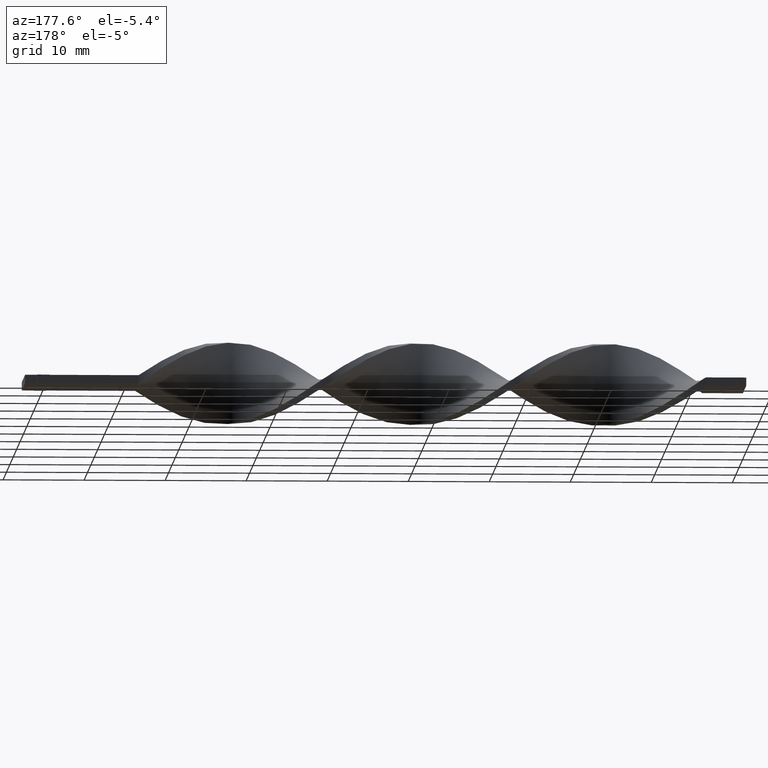
[diagram: clean part render]
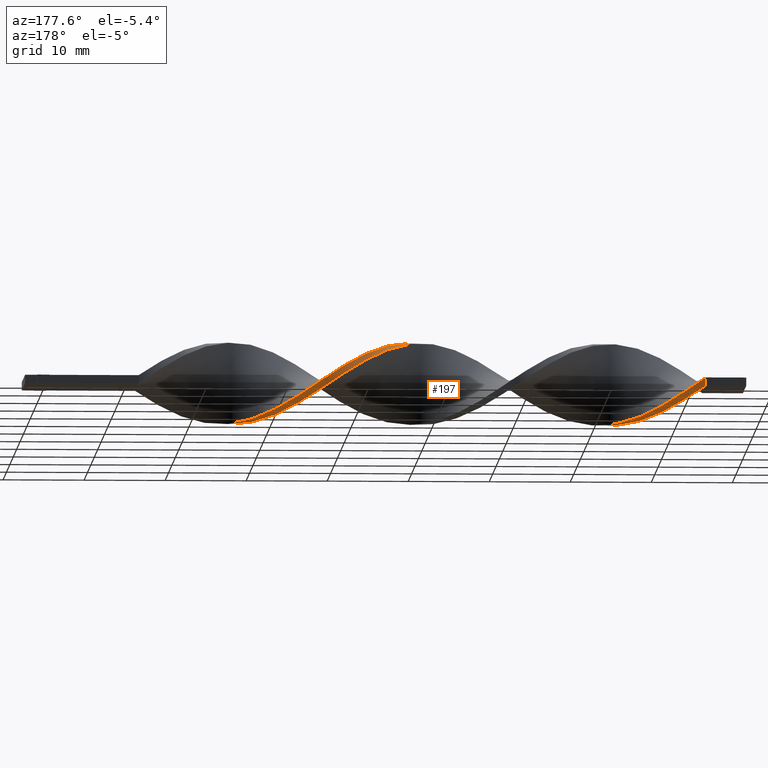
[diagram: same view with one face highlighted and labeled with its STEP entity id]
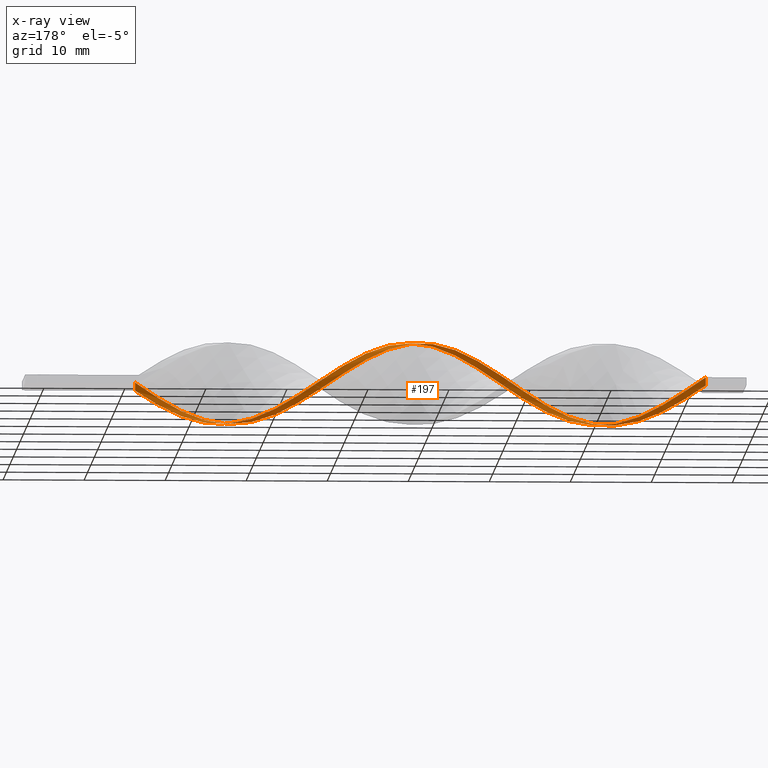
[diagram: x-ray of the same camera — body ghosted, the highlighted face saturated]
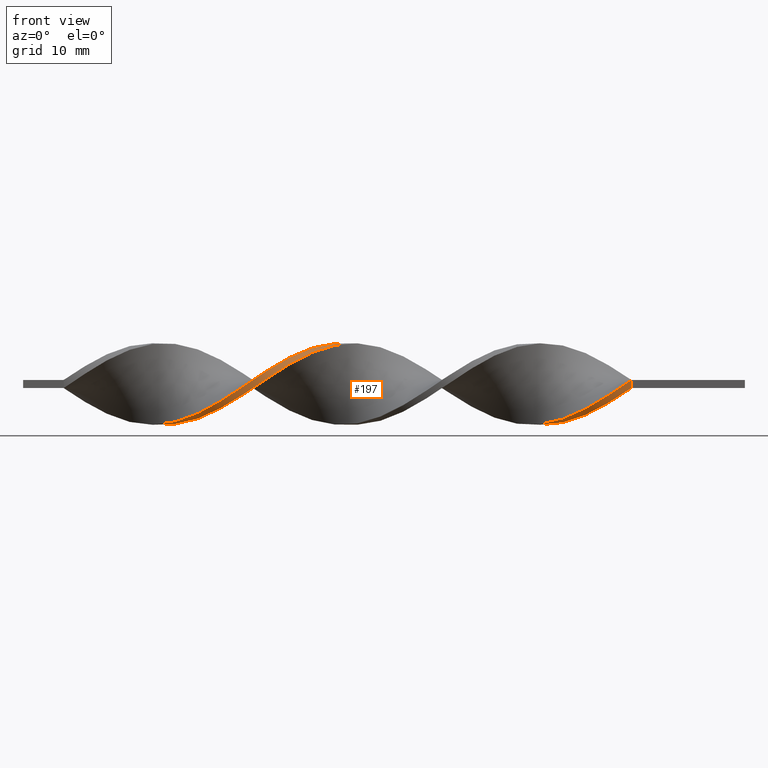
[diagram: same view with one face highlighted and labeled with its STEP entity id]
A machine part, auxiliary view. The second image highlights one B-rep face of the part: STEP entity #197.
The next image is the same camera in x-ray: the body ghosted, the highlighted face saturated — about 2% of this face is hidden behind the body in this view.
A second angle (front view) of the same face is appended — the face is thin or edge-on in the first view.
In plain terms, the highlighted face is a freeform B-spline surface patch.
Its self-contained STEP definition (entity closure, byte-faithful):
#2 = CARTESIAN_POINT ( 'NONE',  ( -71.43589743589743080, -1.099037838325645167, -4.903276030362606619 ) ) ;
#3 = CARTESIAN_POINT ( 'NONE',  ( -69.64102564102564941, -1.305516313869973466, -4.852383656948340729 ) ) ;
#10 = CARTESIAN_POINT ( 'NONE',  ( -62.46153846153845990, -4.974366919274039844, -0.7111074127247621890 ) ) ;
#15 = CARTESIAN_POINT ( 'NONE',  ( -49.89743589743589069, -1.099037838325640948, 4.903276030362608395 ) ) ;
#28 = CARTESIAN_POINT ( 'NONE',  ( -72.33333333333332860, -0.5036723384328442021, -5.036723384328412934 ) ) ;
#31 = CARTESIAN_POINT ( 'NONE',  ( -15.79487179487179205, -4.735051254986482050, -1.682049230150814312 ) ) ;
#38 = CARTESIAN_POINT ( 'NONE',  ( -70.53846153846153300, -0.7163302668880203727, -5.010902036907448398 ) ) ;
#40 = CARTESIAN_POINT ( 'NONE',  ( -73.23076923076924061, 0.1063289642275847546, -5.023812710617930222 ) ) ;
#50 = CARTESIAN_POINT ( 'NONE',  ( -63.35897435897435770, -4.530813501584094460, -2.256988544190325907 ) ) ;
#52 = CARTESIAN_POINT ( 'NONE',  ( -43.61538461538461320, 3.716969558312884114, 3.436045048790596024 ) ) ;
#55 = CARTESIAN_POINT ( 'NONE',  ( -13.99999999999999645, -5.000000000000000888, -0.5000000000000000000 ) ) ;
#58 = CARTESIAN_POINT ( 'NONE',  ( -48.10256410256410220, 0.1063289642275882241, 5.023812710617930222 ) ) ;
#64 = CARTESIAN_POINT ( 'NONE',  ( -81.30769230769233502, 4.888022846936943111, -1.315104909338223660 ) ) ;
#75 = CARTESIAN_POINT ( 'NONE',  ( -46.30769230769230660, 1.305516313869969025, 4.852383656948340729 ) ) ;
#80 = CARTESIAN_POINT ( 'NONE',  ( -39.12820512820512420, 4.974366919274035403, 0.7111074127247607457 ) ) ;
#81 = CARTESIAN_POINT ( 'NONE',  ( -25.66666666666666785, 0.5036723384328388731, -5.036723384328412934 ) ) ;
#85 = CARTESIAN_POINT ( 'NONE',  ( -45.41025641025640880, 1.894702360851922895, 4.693865276989232171 ) ) ;
#100 = CARTESIAN_POINT ( 'NONE',  ( -58.87179487179486870, -4.974366919274039844, 0.7111074127247669630 ) ) ;
#102 = EDGE_CURVE ( 'NONE', #883, #1191, #1312, .T. ) ;
#104 = CARTESIAN_POINT ( 'NONE',  ( -26.56410256410256210, 0.1063289642275847546, -5.023812710617930222 ) ) ;
#108 = CARTESIAN_POINT ( 'NONE',  ( -52.58974358974359120, -2.786661774892327248, 4.225728863414810021 ) ) ;
#116 = CARTESIAN_POINT ( 'NONE',  ( -72.33333333333332860, 0.5036723384328388731, -5.036723384328412934 ) ) ;
#121 = CARTESIAN_POINT ( 'NONE',  ( -31.94871794871794535, 3.410992411735102703, -3.689868665289526284 ) ) ;
#125 = CARTESIAN_POINT ( 'NONE',  ( -57.07692307692307310, -4.659641714287933389, 1.880887847392240575 ) ) ;
#132 = CARTESIAN_POINT ( 'NONE',  ( -59.76923076923077360, -4.939289008388870528, 1.107109916111305159 ) ) ;
#137 = EDGE_CURVE ( 'NONE', #857, #498, #843, .T. ) ;
#139 = CARTESIAN_POINT ( 'NONE',  ( -24.76923076923076650, -0.1063289642275912633, -5.023812710617930222 ) ) ;
#142 = CARTESIAN_POINT ( 'NONE',  ( -58.87179487179486870, -4.735051254986480274, 1.682049230150818753 ) ) ;
#150 = CARTESIAN_POINT ( 'NONE',  ( -64.25641025641024839, -4.659641714287935166, -1.880887847392236800 ) ) ;
#151 = CARTESIAN_POINT ( 'NONE',  ( -83.10256410256410220, 5.060710991611126808, -0.1071099161113047288 ) ) ;
#155 = CARTESIAN_POINT ( 'NONE',  ( -66.94871794871794179, -2.962961240565979981, -4.104038128678483055 ) ) ;
#156 = CARTESIAN_POINT ( 'NONE',  ( -82.20512820512820440, 4.735051254986476721, -1.682049230150816088 ) ) ;
#161 = CARTESIAN_POINT ( 'NONE',  ( -74.12820512820510999, 0.7163302668880149326, -5.010902036907446622 ) ) ;
#166 = CARTESIAN_POINT ( 'NONE',  ( -23.87179487179487580, -1.694403338218445576, -4.769828676396802081 ) ) ;
#169 = CARTESIAN_POINT ( 'NONE',  ( -74.12820512820512420, 0.7163302668880148216, -5.010902036907447510 ) ) ;
#170 = CARTESIAN_POINT ( 'NONE',  ( -77.71794871794874382, 2.962961240565973320, -4.104038128678484831 ) ) ;
#185 = CARTESIAN_POINT ( 'NONE',  ( -39.12820512820512420, 4.974366919274035403, 0.7111074127247607457 ) ) ;
#194 = EDGE_LOOP ( 'NONE', ( #969, #1398, #904, #1077 ) ) ;
#195 = CARTESIAN_POINT ( 'NONE',  ( -41.82051282051281760, 3.859023582904235194, 3.275699201900567292 ) ) ;
#197 = ADVANCED_FACE ( 'NONE', ( #1264 ), #744, .T. ) ;
#199 = CARTESIAN_POINT ( 'NONE',  ( -24.76923076923076650, -0.1063289642275912633, -5.023812710617930222 ) ) ;
#202 = CARTESIAN_POINT ( 'NONE',  ( -50.79487179487178850, -1.694403338218443578, 4.769828676396803857 ) ) ;
#206 = CARTESIAN_POINT ( 'NONE',  ( -34.64102564102564230, 4.888022846936943111, -1.315104909338223660 ) ) ;
#213 = CARTESIAN_POINT ( 'NONE',  ( -78.61538461538461320, 4.074115069975897896, -2.941357917118425647 ) ) ;
#222 = CARTESIAN_POINT ( 'NONE',  ( -73.23076923076924061, 1.099037838325638727, -4.903276030362606619 ) ) ;
#229 = CARTESIAN_POINT ( 'NONE',  ( -46.30769230769230660, 1.305516313869969025, 4.852383656948340729 ) ) ;
#236 = CARTESIAN_POINT ( 'NONE',  ( -65.15384615384614619, -3.859023582904239191, -3.275699201900567292 ) ) ;
#239 = CARTESIAN_POINT ( 'NONE',  ( -17.58974358974358765, -4.194918542244167270, -2.766343873045446600 ) ) ;
#243 = CARTESIAN_POINT ( 'NONE',  ( -49.00000000000000711, 0.5036723384328398723, 5.036723384328412045 ) ) ;
#244 = CARTESIAN_POINT ( 'NONE',  ( -67.84615384615385381, -2.428831800708953104, -4.398951702833858945 ) ) ;
#248 = CARTESIAN_POINT ( 'NONE',  ( -23.87179487179487580, -0.7163302668880203727, -5.010902036907448398 ) ) ;
#257 = CARTESIAN_POINT ( 'NONE',  ( -54.38461538461538680, -2.962961240565975984, 4.104038128678485720 ) ) ;
#271 = CARTESIAN_POINT ( 'NONE',  ( -47.20512820512820440, 1.694403338218440691, 4.769828676396802969 ) ) ;
#275 = CARTESIAN_POINT ( 'NONE',  ( -20.28205128205128460, -3.716969558312888555, -3.436045048790597356 ) ) ;
#278 = CARTESIAN_POINT ( 'NONE',  ( -47.20512820512820440, 1.694403338218440691, 4.769828676396802969 ) ) ;
#281 = CARTESIAN_POINT ( 'NONE',  ( -71.43589743589743080, -1.099037838325645167, -4.903276030362606619 ) ) ;
#288 = CARTESIAN_POINT ( 'NONE',  ( -53.48717948717948900, -2.428831800708951327, 4.398951702833859834 ) ) ;
#294 = CARTESIAN_POINT ( 'NONE',  ( -59.76923076923076650, -4.939289008388870528, 1.107109916111305381 ) ) ;
#298 = CARTESIAN_POINT ( 'NONE',  ( -13.99999999999999645, -5.000000000000000888, 0.5000000000000000000 ) ) ;
#301 = CARTESIAN_POINT ( 'NONE',  ( -19.38461538461538325, -4.074115069975905001, -2.941357917118423870 ) ) ;
#304 = CARTESIAN_POINT ( 'NONE',  ( -73.23076923076924061, 1.099037838325638727, -4.903276030362606619 ) ) ;
#305 = CARTESIAN_POINT ( 'NONE',  ( -15.79487179487179205, -4.974366919274039844, -0.7111074127247621890 ) ) ;
#311 = CARTESIAN_POINT ( 'NONE',  ( -21.17948717948717885, -2.428831800708953104, -4.398951702833858945 ) ) ;
#314 = CARTESIAN_POINT ( 'NONE',  ( -36.43589743589743790, 5.060710991611126808, -0.1071099161113047288 ) ) ;
#322 = CARTESIAN_POINT ( 'NONE',  ( -40.02564102564102200, 4.530813501584090019, 2.256988544190324575 ) ) ;
#328 = CARTESIAN_POINT ( 'NONE',  ( -16.69230769230769340, -4.530813501584094460, -2.256988544190326351 ) ) ;
#342 = CARTESIAN_POINT ( 'NONE',  ( -33.74358974358974450, 4.659641714287928949, -1.880887847392237688 ) ) ;
#343 = EDGE_CURVE ( 'NONE', #883, #498, #1239, .T. ) ;
#350 = CARTESIAN_POINT ( 'NONE',  ( -80.41025641025640880, 4.659641714287928949, -1.880887847392237688 ) ) ;
#352 = CARTESIAN_POINT ( 'NONE',  ( -67.84615384615385381, -3.251815666602609234, -3.830886956102702356 ) ) ;
#355 = CARTESIAN_POINT ( 'NONE',  ( -60.66666666666666430, -5.000000000000000888, -0.5000000000000000000 ) ) ;
#359 = CARTESIAN_POINT ( 'NONE',  ( -70.53846153846153300, -0.7163302668880202617, -5.010902036907447510 ) ) ;
#364 = CARTESIAN_POINT ( 'NONE',  ( -16.69230769230769695, -4.530813501584094460, -2.256988544190325907 ) ) ;
#367 = CARTESIAN_POINT ( 'NONE',  ( -51.69230769230769340, -2.240532556555387078, 4.497778769905804275 ) ) ;
#371 = CARTESIAN_POINT ( 'NONE',  ( -20.28205128205128460, -2.962961240565979981, -4.104038128678483055 ) ) ;
#373 = CARTESIAN_POINT ( 'NONE',  ( -61.56410256410256920, -5.060710991611132137, -0.1071099161113024806 ) ) ;
#379 = CARTESIAN_POINT ( 'NONE',  ( -75.92307692307693401, 1.894702360851919565, -4.693865276989233948 ) ) ;
#381 = CARTESIAN_POINT ( 'NONE',  ( -57.07692307692307310, -4.194918542244165494, 2.766343873045449708 ) ) ;
#388 = CARTESIAN_POINT ( 'NONE',  ( -70.53846153846153300, -1.694403338218445576, -4.769828676396802081 ) ) ;
#391 = CARTESIAN_POINT ( 'NONE',  ( -67.84615384615385381, -2.428831800708953104, -4.398951702833858945 ) ) ;
#399 = CARTESIAN_POINT ( 'NONE',  ( -62.46153846153845990, -4.735051254986482050, -1.682049230150814312 ) ) ;
#401 = CARTESIAN_POINT ( 'NONE',  ( -46.30769230769230660, 2.240532556555383970, 4.497778769905804275 ) ) ;
#402 = CARTESIAN_POINT ( 'NONE',  ( -48.10256410256410220, 1.099037838325642280, 4.903276030362606619 ) ) ;
#421 = CARTESIAN_POINT ( 'NONE',  ( -20.28205128205128460, -3.716969558312888555, -3.436045048790597356 ) ) ;
#422 = CARTESIAN_POINT ( 'NONE',  ( -38.23076923076922640, 4.939289008388865199, 1.107109916111301162 ) ) ;
#425 = CARTESIAN_POINT ( 'NONE',  ( -44.51282051282051100, 2.428831800708947775, 4.398951702833858945 ) ) ;
#431 = CARTESIAN_POINT ( 'NONE',  ( -33.74358974358974450, 4.194918542244161053, -2.766343873045447488 ) ) ;
#432 = CARTESIAN_POINT ( 'NONE',  ( -17.58974358974358765, -4.194918542244167270, -2.766343873045446600 ) ) ;
#440 = CARTESIAN_POINT ( 'NONE',  ( -79.51282051282051100, 4.431260581638915674, -2.446670785446252161 ) ) ;
#441 = CARTESIAN_POINT ( 'NONE',  ( -24.76923076923076650, -1.099037838325645167, -4.903276030362606619 ) ) ;
#442 = CARTESIAN_POINT ( 'NONE',  ( -27.46153846153846345, 1.694403338218440247, -4.769828676396802969 ) ) ;
#444 = CARTESIAN_POINT ( 'NONE',  ( -40.92307692307691980, 4.659641714287929837, 1.880887847392236800 ) ) ;
#451 = CARTESIAN_POINT ( 'NONE',  ( -41.82051282051281760, 4.431260581638917451, 2.446670785446250829 ) ) ;
#452 = CARTESIAN_POINT ( 'NONE',  ( -29.25641025641025905, 2.786661774892324583, -4.225728863414808245 ) ) ;
#484 = CARTESIAN_POINT ( 'NONE',  ( -81.30769230769232081, 4.530813501584088243, -2.256988544190327683 ) ) ;
#488 = CARTESIAN_POINT ( 'NONE',  ( -53.48717948717948900, -3.251815666602607457, 3.830886956102703689 ) ) ;
#493 = CARTESIAN_POINT ( 'NONE',  ( -33.74358974358974450, 4.194918542244161053, -2.766343873045447488 ) ) ;
#495 = CARTESIAN_POINT ( 'NONE',  ( -76.82051282051281760, 3.251815666602603461, -3.830886956102702356 ) ) ;
#498 = VERTEX_POINT ( 'NONE', #1026 ) ;
#499 = CARTESIAN_POINT ( 'NONE',  ( -50.79487179487178850, -0.7163302668880178192, 5.010902036907447510 ) ) ;
#502 = CARTESIAN_POINT ( 'NONE',  ( -36.43589743589743790, 4.939289008388865199, -1.107109916111304937 ) ) ;
#503 = CARTESIAN_POINT ( 'NONE',  ( -19.38461538461538325, -3.410992411735109364, -3.689868665289524952 ) ) ;
#506 = CARTESIAN_POINT ( 'NONE',  ( -66.05128205128204399, -4.074115069975905001, -2.941357917118423870 ) ) ;
#508 = CARTESIAN_POINT ( 'NONE',  ( -68.74358974358973740, -1.894702360851925560, -4.693865276989233948 ) ) ;
#521 = CARTESIAN_POINT ( 'NONE',  ( -13.99999999999999645, -5.000000000000000888, -0.5000000000000000000 ) ) ;
#528 = CARTESIAN_POINT ( 'NONE',  ( -71.43589743589743080, -0.1063289642275912633, -5.023812710617930222 ) ) ;
#537 = CARTESIAN_POINT ( 'NONE',  ( -84.00000000000000000, 4.999999999999995559, -0.5000000000000006661 ) ) ;
#539 = CARTESIAN_POINT ( 'NONE',  ( -79.51282051282051100, 3.859023582904232974, -3.275699201900567292 ) ) ;
#543 = CARTESIAN_POINT ( 'NONE',  ( -56.17948717948717530, -3.859023582904238303, 3.275699201900567736 ) ) ;
#545 = CARTESIAN_POINT ( 'NONE',  ( -19.38461538461538325, -4.074115069975905001, -2.941357917118423870 ) ) ;
#547 = CARTESIAN_POINT ( 'NONE',  ( -64.25641025641024839, -4.194918542244167270, -2.766343873045446600 ) ) ;
#549 = CARTESIAN_POINT ( 'NONE',  ( -44.51282051282051100, 3.251815666602604349, 3.830886956102702356 ) ) ;
#552 = CARTESIAN_POINT ( 'NONE',  ( -58.87179487179486870, -4.735051254986480274, 1.682049230150818753 ) ) ;
#553 = CARTESIAN_POINT ( 'NONE',  ( -15.79487179487179205, -4.735051254986482050, -1.682049230150814312 ) ) ;
#559 = CARTESIAN_POINT ( 'NONE',  ( -31.94871794871794535, 3.410992411735102703, -3.689868665289526284 ) ) ;
#562 = CARTESIAN_POINT ( 'NONE',  ( -77.71794871794872961, 3.716969558312881450, -3.436045048790598244 ) ) ;
#563 = CARTESIAN_POINT ( 'NONE',  ( -22.07692307692308020, -2.786661774892330357, -4.225728863414808245 ) ) ;
#568 = CARTESIAN_POINT ( 'NONE',  ( -17.58974358974358765, -4.659641714287935166, -1.880887847392236800 ) ) ;
#570 = CARTESIAN_POINT ( 'NONE',  ( -72.33333333333332860, 0.5036723384328388731, -5.036723384328412045 ) ) ;
#572 = CARTESIAN_POINT ( 'NONE',  ( -40.02564102564102200, 4.888022846936944887, 1.315104909338220329 ) ) ;
#576 = CARTESIAN_POINT ( 'NONE',  ( -40.02564102564102200, 4.888022846936944887, 1.315104909338220329 ) ) ;
#590 = CARTESIAN_POINT ( 'NONE',  ( -27.46153846153846345, 0.7163302668880149326, -5.010902036907446622 ) ) ;
#602 = CARTESIAN_POINT ( 'NONE',  ( -29.25641025641025905, 1.894702360851919787, -4.693865276989233948 ) ) ;
#605 = CARTESIAN_POINT ( 'NONE',  ( -75.92307692307691980, 2.786661774892324583, -4.225728863414808245 ) ) ;
#607 = CARTESIAN_POINT ( 'NONE',  ( -30.15384615384615330, 3.251815666602603461, -3.830886956102702356 ) ) ;
#613 = CARTESIAN_POINT ( 'NONE',  ( -62.46153846153845990, -4.735051254986482050, -1.682049230150814312 ) ) ;
#617 = CARTESIAN_POINT ( 'NONE',  ( -32.84615384615384670, 3.859023582904232974, -3.275699201900567292 ) ) ;
#620 = CARTESIAN_POINT ( 'NONE',  ( -70.53846153846153300, -1.694403338218445576, -4.769828676396802081 ) ) ;
#622 = CARTESIAN_POINT ( 'NONE',  ( -43.61538461538461320, 2.962961240565975984, 4.104038128678483055 ) ) ;
#627 = CARTESIAN_POINT ( 'NONE',  ( -65.15384615384614619, -4.431260581638921892, -2.446670785446251273 ) ) ;
#631 = CARTESIAN_POINT ( 'NONE',  ( -79.51282051282051100, 3.859023582904233418, -3.275699201900567736 ) ) ;
#644 = CARTESIAN_POINT ( 'NONE',  ( -66.94871794871794179, -3.716969558312888555, -3.436045048790597356 ) ) ;
#647 = CARTESIAN_POINT ( 'NONE',  ( -68.74358974358973740, -2.786661774892330357, -4.225728863414808245 ) ) ;
#650 = CARTESIAN_POINT ( 'NONE',  ( -83.10256410256410220, 4.939289008388865199, -1.107109916111304937 ) ) ;
#654 = CARTESIAN_POINT ( 'NONE',  ( -69.64102564102564941, -2.240532556555387966, -4.497778769905804275 ) ) ;
#656 = CARTESIAN_POINT ( 'NONE',  ( -69.64102564102564941, -1.305516313869973466, -4.852383656948340729 ) ) ;
#657 = CARTESIAN_POINT ( 'NONE',  ( -75.02564102564102200, 1.305516313869967027, -4.852383656948339841 ) ) ;
#665 = CARTESIAN_POINT ( 'NONE',  ( -48.10256410256410220, 1.099037838325642280, 4.903276030362606619 ) ) ;
#675 = CARTESIAN_POINT ( 'NONE',  ( -18.48717948717948545, -4.431260581638921892, -2.446670785446251273 ) ) ;
#676 = CARTESIAN_POINT ( 'NONE',  ( -36.43589743589743790, 5.060710991611125920, -0.1071099161113047427 ) ) ;
#679 = CARTESIAN_POINT ( 'NONE',  ( -57.97435897435897090, -4.888022846936948440, 1.315104909338224548 ) ) ;
#684 = CARTESIAN_POINT ( 'NONE',  ( -29.25641025641025905, 1.894702360851919565, -4.693865276989233948 ) ) ;
#695 = CARTESIAN_POINT ( 'NONE',  ( -42.71794871794872250, 3.410992411735105367, 3.689868665289524508 ) ) ;
#701 = CARTESIAN_POINT ( 'NONE',  ( -36.43589743589743790, 4.939289008388865199, -1.107109916111304715 ) ) ;
#704 = CARTESIAN_POINT ( 'NONE',  ( -39.12820512820512420, 4.735051254986477609, 1.682049230150812758 ) ) ;
#707 = CARTESIAN_POINT ( 'NONE',  ( -27.46153846153846345, 1.694403338218440247, -4.769828676396802969 ) ) ;
#724 = CARTESIAN_POINT ( 'NONE',  ( -66.05128205128204399, -3.410992411735109364, -3.689868665289524952 ) ) ;
#726 = CARTESIAN_POINT ( 'NONE',  ( -82.20512820512820440, 4.735051254986476721, -1.682049230150816088 ) ) ;
#730 = CARTESIAN_POINT ( 'NONE',  ( -77.71794871794872961, 2.962961240565973320, -4.104038128678483943 ) ) ;
#735 = CARTESIAN_POINT ( 'NONE',  ( -45.41025641025640880, 1.894702360851923117, 4.693865276989232171 ) ) ;
#740 = CARTESIAN_POINT ( 'NONE',  ( -52.58974358974358410, -1.894702360851922229, 4.693865276989233948 ) ) ;
#741 = CARTESIAN_POINT ( 'NONE',  ( -40.92307692307691980, 4.194918542244161941, 2.766343873045446600 ) ) ;
#744 =( BOUNDED_SURFACE ( )  B_SPLINE_SURFACE ( 1, 2, ( 
 ( #1145, #1494, #31, #364, #239, #879, #503, #371, #1366, #1241, #1010, #248, #139, #1017, #1047, #442, #1451, #826, #607, #1343, #946, #979, #342, #1353, #1442, #314, #940, #1311, #704, #322, #1326, #195, #695, #1195, #425, #85, #75, #1185, #58, #1084, #1577, #202, #839, #1204, #1333, #1586, #1597, #1213, #1302, #679, #1056, #1487, #355, #871, #399, #50, #547, #1274, #1144, #155, #391, #1279, #656, #38, #528, #570, #304, #1180, #1052, #1555, #1071, #562, #1573, #440, #825, #64, #1062, #151, #1023 ),
 ( #1402, #1377, #750, #1252, #568, #675, #301, #421, #1199, #1069, #807, #1569, #953, #1562, #936, #1306, #1447, #684, #823, #1178, #559, #1060, #431, #944, #1321, #701, #1421, #1437, #80, #576, #1079, #451, #925, #1533, #1030, #1281, #401, #278, #665, #243, #1114, #1504, #874, #740, #1258, #257, #1012, #749, #381, #1234, #142, #132, #766, #373, #10, #1266, #150, #627, #506, #644, #1613, #1001, #1136, #620, #2, #905, #40, #169, #1194, #379, #1356, #730, #929, #631, #1484, #1096, #726, #868, #849 ) ),
 .UNSPECIFIED., .F., .F., .F. ) 
 B_SPLINE_SURFACE_WITH_KNOTS ( ( 2, 2 ),
 ( 3, 2, 2, 2, 2, 2, 2, 2, 2, 2, 2, 2, 2, 2, 2, 2, 2, 2, 2, 2, 2, 2, 2, 2, 2, 2, 2, 2, 2, 2, 2, 2, 2, 2, 2, 2, 2, 2, 2, 3 ),
 ( 0.000000000000000000, 1.000000000000000000 ),
 ( 0.000000000000000000, 0.01923076923076923184, 0.03846153846153846367, 0.05769230769230769551, 0.07692307692307692735, 0.09615384615384615918, 0.1153846153846153910, 0.1346153846153846090, 0.1538461538461538547, 0.1730769230769230727, 0.1923076923076923184, 0.2115384615384615363, 0.2307692307692307820, 0.2500000000000000000, 0.2692307692307692180, 0.2884615384615384359, 0.3076923076923077094, 0.3269230769230769273, 0.3461538461538461453, 0.3653846153846153633, 0.3846153846153846367, 0.4038461538461538547, 0.4230769230769230727, 0.4423076923076922906, 0.4615384615384615641, 0.4807692307692307820, 0.5000000000000000000, 0.5192307692307692735, 0.5384615384615384359, 0.5576923076923077094, 0.5769230769230768718, 0.5961538461538461453, 0.6153846153846154188, 0.6346153846153845812, 0.6538461538461538547, 0.6730769230769231282, 0.6923076923076922906, 0.7115384615384615641, 0.7307692307692307265, 0.7500000000000000000 ),
 .UNSPECIFIED. ) 
 GEOMETRIC_REPRESENTATION_ITEM ( )  RATIONAL_B_SPLINE_SURFACE ( (
 ( 1.000000000000000000, 0.9927088740980539727, 1.000000000000000000, 0.9927088740980539727, 1.000000000000000000, 0.9927088740980539727, 1.000000000000000000, 0.9927088740980539727, 1.000000000000000000, 0.9927088740980539727, 1.000000000000000000, 0.9927088740980539727, 1.000000000000000000, 0.9927088740980539727, 1.000000000000000000, 0.9927088740980539727, 1.000000000000000000, 0.9927088740980539727, 1.000000000000000000, 0.9927088740980539727, 1.000000000000000000, 0.9927088740980539727, 1.000000000000000000, 0.9927088740980539727, 1.000000000000000000, 0.9927088740980539727, 1.000000000000000000, 0.9927088740980539727, 1.000000000000000000, 0.9927088740980539727, 1.000000000000000000, 0.9927088740980539727, 1.000000000000000000, 0.9927088740980539727, 1.000000000000000000, 0.9927088740980539727, 1.000000000000000000, 0.9927088740980539727, 1.000000000000000000, 0.9927088740980539727, 1.000000000000000000, 0.9927088740980539727, 1.000000000000000000, 0.9927088740980539727, 1.000000000000000000, 0.9927088740980539727, 1.000000000000000000, 0.9927088740980539727, 1.000000000000000000, 0.9927088740980539727, 1.000000000000000000, 0.9927088740980539727, 1.000000000000000000, 0.9927088740980539727, 1.000000000000000000, 0.9927088740980539727, 1.000000000000000000, 0.9927088740980539727, 1.000000000000000000, 0.9927088740980539727, 1.000000000000000000, 0.9927088740980539727, 1.000000000000000000, 0.9927088740980539727, 1.000000000000000000, 0.9927088740980539727, 1.000000000000000000, 0.9927088740980539727, 1.000000000000000000, 0.9927088740980539727, 1.000000000000000000, 0.9927088740980539727, 1.000000000000000000, 0.9927088740980539727, 1.000000000000000000, 0.9927088740980539727, 1.000000000000000000, 0.9927088740980539727, 1.000000000000000000),
 ( 1.000000000000000000, 0.9927088740980539727, 1.000000000000000000, 0.9927088740980539727, 1.000000000000000000, 0.9927088740980539727, 1.000000000000000000, 0.9927088740980539727, 1.000000000000000000, 0.9927088740980539727, 1.000000000000000000, 0.9927088740980539727, 1.000000000000000000, 0.9927088740980539727, 1.000000000000000000, 0.9927088740980539727, 1.000000000000000000, 0.9927088740980539727, 1.000000000000000000, 0.9927088740980539727, 1.000000000000000000, 0.9927088740980539727, 1.000000000000000000, 0.9927088740980539727, 1.000000000000000000, 0.9927088740980539727, 1.000000000000000000, 0.9927088740980539727, 1.000000000000000000, 0.9927088740980539727, 1.000000000000000000, 0.9927088740980539727, 1.000000000000000000, 0.9927088740980539727, 1.000000000000000000, 0.9927088740980539727, 1.000000000000000000, 0.9927088740980539727, 1.000000000000000000, 0.9927088740980539727, 1.000000000000000000, 0.9927088740980539727, 1.000000000000000000, 0.9927088740980539727, 1.000000000000000000, 0.9927088740980539727, 1.000000000000000000, 0.9927088740980539727, 1.000000000000000000, 0.9927088740980539727, 1.000000000000000000, 0.9927088740980539727, 1.000000000000000000, 0.9927088740980539727, 1.000000000000000000, 0.9927088740980539727, 1.000000000000000000, 0.9927088740980539727, 1.000000000000000000, 0.9927088740980539727, 1.000000000000000000, 0.9927088740980539727, 1.000000000000000000, 0.9927088740980539727, 1.000000000000000000, 0.9927088740980539727, 1.000000000000000000, 0.9927088740980539727, 1.000000000000000000, 0.9927088740980539727, 1.000000000000000000, 0.9927088740980539727, 1.000000000000000000, 0.9927088740980539727, 1.000000000000000000, 0.9927088740980539727, 1.000000000000000000, 0.9927088740980539727, 1.000000000000000000) ) ) 
 REPRESENTATION_ITEM ( '' )  SURFACE ( )  );
#749 = CARTESIAN_POINT ( 'NONE',  ( -56.17948717948717530, -3.859023582904238303, 3.275699201900568180 ) ) ;
#750 = CARTESIAN_POINT ( 'NONE',  ( -15.79487179487179205, -4.974366919274039844, -0.7111074127247621890 ) ) ;
#751 = CARTESIAN_POINT ( 'NONE',  ( -83.10256410256410220, 5.060710991611125920, -0.1071099161113047427 ) ) ;
#760 = EDGE_CURVE ( 'NONE', #1191, #857, #1422, .T. ) ;
#766 = CARTESIAN_POINT ( 'NONE',  ( -60.66666666666666430, -5.000000000000000888, 0.5000000000000000000 ) ) ;
#775 = CARTESIAN_POINT ( 'NONE',  ( -13.99999999999999645, -5.000000000000000888, 0.5000000000000000000 ) ) ;
#782 = CARTESIAN_POINT ( 'NONE',  ( -76.82051282051281760, 2.428831800708946886, -4.398951702833858945 ) ) ;
#786 = CARTESIAN_POINT ( 'NONE',  ( -22.97435897435897090, -2.240532556555387966, -4.497778769905804275 ) ) ;
#800 = CARTESIAN_POINT ( 'NONE',  ( -14.89743589743589602, -5.060710991611131249, -0.1071099161113024806 ) ) ;
#806 = CARTESIAN_POINT ( 'NONE',  ( -60.66666666666666430, -5.000000000000000888, 0.5000000000000000000 ) ) ;
#807 = CARTESIAN_POINT ( 'NONE',  ( -22.97435897435897090, -2.240532556555387966, -4.497778769905804275 ) ) ;
#809 = CARTESIAN_POINT ( 'NONE',  ( -38.23076923076922640, 5.060710991611125920, 0.1071099161113012732 ) ) ;
#810 = CARTESIAN_POINT ( 'NONE',  ( -18.48717948717948545, -4.431260581638921003, -2.446670785446251273 ) ) ;
#823 = CARTESIAN_POINT ( 'NONE',  ( -30.15384615384615330, 2.428831800708946886, -4.398951702833858945 ) ) ;
#824 = CARTESIAN_POINT ( 'NONE',  ( -23.87179487179487580, -0.7163302668880202617, -5.010902036907447510 ) ) ;
#825 = CARTESIAN_POINT ( 'NONE',  ( -80.41025641025640880, 4.659641714287928949, -1.880887847392237688 ) ) ;
#826 = CARTESIAN_POINT ( 'NONE',  ( -29.25641025641025905, 2.786661774892324583, -4.225728863414808245 ) ) ;
#829 = CARTESIAN_POINT ( 'NONE',  ( -41.82051282051281760, 4.431260581638916562, 2.446670785446250829 ) ) ;
#835 = CARTESIAN_POINT ( 'NONE',  ( -32.84615384615384670, 4.431260581638914786, -2.446670785446252161 ) ) ;
#839 = CARTESIAN_POINT ( 'NONE',  ( -51.69230769230769340, -2.240532556555387078, 4.497778769905804275 ) ) ;
#843 = B_SPLINE_CURVE_WITH_KNOTS ( 'NONE', 3,
 ( #1085, #964, #1587, #1462 ),
 .UNSPECIFIED., .F., .F.,
 ( 4, 4 ),
 ( 0.000000000000000000, 1.000000000000000000 ),
 .UNSPECIFIED. ) ;
#846 = CARTESIAN_POINT ( 'NONE',  ( -22.07692307692308020, -1.894702360851925560, -4.693865276989233948 ) ) ;
#849 = CARTESIAN_POINT ( 'NONE',  ( -84.00000000000000000, 4.999999999999995559, -0.5000000000000006661 ) ) ;
#857 = VERTEX_POINT ( 'NONE', #1495 ) ;
#858 = CARTESIAN_POINT ( 'NONE',  ( -61.56410256410256920, -4.939289008388870528, -1.107109916111302717 ) ) ;
#866 = CARTESIAN_POINT ( 'NONE',  ( -40.02564102564102200, 4.530813501584090019, 2.256988544190324575 ) ) ;
#868 = CARTESIAN_POINT ( 'NONE',  ( -83.10256410256410220, 4.939289008388865199, -1.107109916111304715 ) ) ;
#871 = CARTESIAN_POINT ( 'NONE',  ( -61.56410256410256920, -4.939289008388870528, -1.107109916111302717 ) ) ;
#874 = CARTESIAN_POINT ( 'NONE',  ( -51.69230769230769340, -1.305516313869972134, 4.852383656948340729 ) ) ;
#876 = CARTESIAN_POINT ( 'NONE',  ( -47.20512820512820440, 0.7163302668880151547, 5.010902036907446622 ) ) ;
#879 = CARTESIAN_POINT ( 'NONE',  ( -18.48717948717948545, -3.859023582904239191, -3.275699201900567736 ) ) ;
#883 = VERTEX_POINT ( 'NONE', #965 ) ;
#884 = CARTESIAN_POINT ( 'NONE',  ( -79.51282051282051100, 4.431260581638914786, -2.446670785446252161 ) ) ;
#889 = CARTESIAN_POINT ( 'NONE',  ( -80.41025641025640880, 4.194918542244161053, -2.766343873045447488 ) ) ;
#904 = ORIENTED_EDGE ( 'NONE', *, *, #137, .F. ) ;
#905 = CARTESIAN_POINT ( 'NONE',  ( -72.33333333333332860, -0.5036723384328442021, -5.036723384328412045 ) ) ;
#909 = CARTESIAN_POINT ( 'NONE',  ( -52.58974358974359120, -1.894702360851922451, 4.693865276989233948 ) ) ;
#910 = CARTESIAN_POINT ( 'NONE',  ( -73.23076923076924061, 0.1063289642275847546, -5.023812710617930222 ) ) ;
#925 = CARTESIAN_POINT ( 'NONE',  ( -42.71794871794872250, 4.074115069975900560, 2.941357917118423426 ) ) ;
#929 = CARTESIAN_POINT ( 'NONE',  ( -78.61538461538461320, 3.410992411735102703, -3.689868665289526284 ) ) ;
#936 = CARTESIAN_POINT ( 'NONE',  ( -26.56410256410256210, 0.1063289642275847546, -5.023812710617930222 ) ) ;
#937 = CARTESIAN_POINT ( 'NONE',  ( -19.38461538461538325, -3.410992411735109364, -3.689868665289524952 ) ) ;
#940 = CARTESIAN_POINT ( 'NONE',  ( -37.33333333333332860, 4.999999999999995559, 0.4999999999999993339 ) ) ;
#944 = CARTESIAN_POINT ( 'NONE',  ( -34.64102564102564230, 4.530813501584088243, -2.256988544190327239 ) ) ;
#946 = CARTESIAN_POINT ( 'NONE',  ( -31.94871794871794535, 4.074115069975897896, -2.941357917118425647 ) ) ;
#953 = CARTESIAN_POINT ( 'NONE',  ( -24.76923076923076650, -1.099037838325645167, -4.903276030362606619 ) ) ;
#955 = CARTESIAN_POINT ( 'NONE',  ( -18.48717948717948545, -3.859023582904239191, -3.275699201900567292 ) ) ;
#961 = CARTESIAN_POINT ( 'NONE',  ( -30.15384615384615330, 3.251815666602603461, -3.830886956102702356 ) ) ;
#964 = CARTESIAN_POINT ( 'NONE',  ( -84.00000000000000000, 4.999999999999995559, 0.1666666666666660468 ) ) ;
#965 = CARTESIAN_POINT ( 'NONE',  ( -13.99999999999999645, -5.000000000000000888, 0.5000000000000000000 ) ) ;
#969 = ORIENTED_EDGE ( 'NONE', *, *, #102, .F. ) ;
#979 = CARTESIAN_POINT ( 'NONE',  ( -32.84615384615384670, 4.431260581638915674, -2.446670785446252161 ) ) ;
#987 = CARTESIAN_POINT ( 'NONE',  ( -66.94871794871795601, -2.962961240565980425, -4.104038128678483943 ) ) ;
#990 = CARTESIAN_POINT ( 'NONE',  ( -30.15384615384615330, 2.428831800708946886, -4.398951702833858945 ) ) ;
#993 = CARTESIAN_POINT ( 'NONE',  ( -55.28205128205128460, -4.074115069975903225, 2.941357917118426091 ) ) ;
#995 = CARTESIAN_POINT ( 'NONE',  ( -66.05128205128204399, -4.074115069975905001, -2.941357917118423870 ) ) ;
#997 = CARTESIAN_POINT ( 'NONE',  ( -34.64102564102564230, 4.530813501584088243, -2.256988544190327683 ) ) ;
#1001 = CARTESIAN_POINT ( 'NONE',  ( -68.74358974358973740, -2.786661774892329912, -4.225728863414808245 ) ) ;
#1003 = CARTESIAN_POINT ( 'NONE',  ( -81.30769230769232081, 4.888022846936943111, -1.315104909338223660 ) ) ;
#1006 = CARTESIAN_POINT ( 'NONE',  ( -66.94871794871795601, -3.716969558312888555, -3.436045048790597356 ) ) ;
#1009 = CARTESIAN_POINT ( 'NONE',  ( -37.33333333333332860, 4.999999999999995559, -0.5000000000000006661 ) ) ;
#1010 = CARTESIAN_POINT ( 'NONE',  ( -22.97435897435897090, -1.305516313869973466, -4.852383656948340729 ) ) ;
#1012 = CARTESIAN_POINT ( 'NONE',  ( -55.28205128205128460, -3.410992411735107144, 3.689868665289526728 ) ) ;
#1014 = CARTESIAN_POINT ( 'NONE',  ( -75.02564102564102200, 2.240532556555381749, -4.497778769905805163 ) ) ;
#1017 = CARTESIAN_POINT ( 'NONE',  ( -25.66666666666666785, 0.5036723384328388731, -5.036723384328412045 ) ) ;
#1023 = CARTESIAN_POINT ( 'NONE',  ( -84.00000000000000000, 4.999999999999995559, 0.4999999999999993339 ) ) ;
#1026 = CARTESIAN_POINT ( 'NONE',  ( -84.00000000000000000, 4.999999999999995559, -0.5000000000000006661 ) ) ;
#1030 = CARTESIAN_POINT ( 'NONE',  ( -44.51282051282051100, 3.251815666602604349, 3.830886956102702356 ) ) ;
#1034 = CARTESIAN_POINT ( 'NONE',  ( -75.92307692307691980, 1.894702360851919787, -4.693865276989233948 ) ) ;
#1039 = CARTESIAN_POINT ( 'NONE',  ( -35.53846153846153300, 4.735051254986476721, -1.682049230150816088 ) ) ;
#1042 = CARTESIAN_POINT ( 'NONE',  ( -42.71794871794872250, 4.074115069975900560, 2.941357917118423426 ) ) ;
#1045 = CARTESIAN_POINT ( 'NONE',  ( -21.17948717948717885, -3.251815666602609234, -3.830886956102702356 ) ) ;
#1047 = CARTESIAN_POINT ( 'NONE',  ( -26.56410256410256210, 1.099037838325638727, -4.903276030362606619 ) ) ;
#1051 = CARTESIAN_POINT ( 'NONE',  ( -37.33333333333332860, 4.999999999999995559, 0.4999999999999993339 ) ) ;
#1052 = CARTESIAN_POINT ( 'NONE',  ( -75.02564102564102200, 2.240532556555381749, -4.497778769905805163 ) ) ;
#1056 = CARTESIAN_POINT ( 'NONE',  ( -58.87179487179486870, -4.974366919274039844, 0.7111074127247669630 ) ) ;
#1059 = CARTESIAN_POINT ( 'NONE',  ( -61.56410256410256920, -5.060710991611131249, -0.1071099161113024806 ) ) ;
#1060 = CARTESIAN_POINT ( 'NONE',  ( -32.84615384615384670, 3.859023582904233418, -3.275699201900567736 ) ) ;
#1062 = CARTESIAN_POINT ( 'NONE',  ( -82.20512820512820440, 4.974366919274034515, -0.7111074127247640764 ) ) ;
#1069 = CARTESIAN_POINT ( 'NONE',  ( -22.07692307692308376, -2.786661774892329912, -4.225728863414808245 ) ) ;
#1071 = CARTESIAN_POINT ( 'NONE',  ( -76.82051282051281760, 3.251815666602603461, -3.830886956102702356 ) ) ;
#1077 = ORIENTED_EDGE ( 'NONE', *, *, #760, .F. ) ;
#1079 = CARTESIAN_POINT ( 'NONE',  ( -40.92307692307691980, 4.659641714287929837, 1.880887847392236800 ) ) ;
#1080 = CARTESIAN_POINT ( 'NONE',  ( -26.56410256410256210, 1.099037838325638727, -4.903276030362606619 ) ) ;
#1084 = CARTESIAN_POINT ( 'NONE',  ( -49.00000000000000711, -0.5036723384328429809, 5.036723384328412045 ) ) ;
#1085 = CARTESIAN_POINT ( 'NONE',  ( -84.00000000000000000, 4.999999999999995559, 0.4999999999999993339 ) ) ;
#1094 = CARTESIAN_POINT ( 'NONE',  ( -74.12820512820510999, 1.694403338218440247, -4.769828676396802969 ) ) ;
#1096 = CARTESIAN_POINT ( 'NONE',  ( -81.30769230769233502, 4.530813501584088243, -2.256988544190327239 ) ) ;
#1100 = CARTESIAN_POINT ( 'NONE',  ( -84.00000000000000000, 4.999999999999995559, 0.4999999999999993339 ) ) ;
#1104 = CARTESIAN_POINT ( 'NONE',  ( -28.35897435897435770, 1.305516313869967027, -4.852383656948339841 ) ) ;
#1109 = CARTESIAN_POINT ( 'NONE',  ( -50.79487179487178850, -1.694403338218443356, 4.769828676396803857 ) ) ;
#1114 = CARTESIAN_POINT ( 'NONE',  ( -49.89743589743589069, -0.1063289642275868085, 5.023812710617930222 ) ) ;
#1115 = CARTESIAN_POINT ( 'NONE',  ( -60.66666666666666430, -5.000000000000000888, -0.5000000000000000000 ) ) ;
#1136 = CARTESIAN_POINT ( 'NONE',  ( -69.64102564102564941, -2.240532556555387966, -4.497778769905804275 ) ) ;
#1141 = CARTESIAN_POINT ( 'NONE',  ( -65.15384615384614619, -4.431260581638921003, -2.446670785446251273 ) ) ;
#1144 = CARTESIAN_POINT ( 'NONE',  ( -66.05128205128204399, -3.410992411735109364, -3.689868665289524952 ) ) ;
#1145 = CARTESIAN_POINT ( 'NONE',  ( -13.99999999999999822, -5.000000000000000888, -0.5000000000000000000 ) ) ;
#1162 = CARTESIAN_POINT ( 'NONE',  ( -78.61538461538461320, 3.410992411735102703, -3.689868665289526284 ) ) ;
#1171 = CARTESIAN_POINT ( 'NONE',  ( -55.28205128205128460, -3.410992411735107144, 3.689868665289526728 ) ) ;
#1178 = CARTESIAN_POINT ( 'NONE',  ( -31.05128205128205821, 2.962961240565973320, -4.104038128678483943 ) ) ;
#1180 = CARTESIAN_POINT ( 'NONE',  ( -74.12820512820512420, 1.694403338218440247, -4.769828676396802969 ) ) ;
#1185 = CARTESIAN_POINT ( 'NONE',  ( -47.20512820512820440, 0.7163302668880150437, 5.010902036907447510 ) ) ;
#1187 = DIRECTION ( 'NONE',  ( -0.000000000000000000, -0.000000000000000000, -1.000000000000000000 ) ) ;
#1191 = VERTEX_POINT ( 'NONE', #521 ) ;
#1194 = CARTESIAN_POINT ( 'NONE',  ( -75.02564102564102200, 1.305516313869967027, -4.852383656948339841 ) ) ;
#1195 = CARTESIAN_POINT ( 'NONE',  ( -43.61538461538461320, 2.962961240565975984, 4.104038128678482167 ) ) ;
#1199 = CARTESIAN_POINT ( 'NONE',  ( -21.17948717948717885, -3.251815666602609234, -3.830886956102702356 ) ) ;
#1204 = CARTESIAN_POINT ( 'NONE',  ( -52.58974358974358410, -2.786661774892326804, 4.225728863414810021 ) ) ;
#1209 = CARTESIAN_POINT ( 'NONE',  ( -31.94871794871794535, 4.074115069975897896, -2.941357917118425647 ) ) ;
#1213 = CARTESIAN_POINT ( 'NONE',  ( -56.17948717948717530, -4.431260581638921003, 2.446670785446252605 ) ) ;
#1225 = CARTESIAN_POINT ( 'NONE',  ( -59.76923076923076650, -5.060710991611131249, 0.1071099161113052839 ) ) ;
#1234 = CARTESIAN_POINT ( 'NONE',  ( -57.97435897435897090, -4.530813501584093572, 2.256988544190328128 ) ) ;
#1236 = CARTESIAN_POINT ( 'NONE',  ( -71.43589743589743080, -0.1063289642275912633, -5.023812710617930222 ) ) ;
#1239 =( BOUNDED_CURVE ( )  B_SPLINE_CURVE ( 2, ( #775, #800, #305, #1299, #1293, #810, #545, #275, #1045, #563, #786, #166, #441, #1323, #104, #590, #1104, #602, #990, #1585, #121, #617, #493, #997, #1039, #502, #1009, #809, #185, #572, #444, #829, #1042, #52, #549, #1590, #1505, #271, #402, #1531, #1406, #499, #1515, #909, #288, #1553, #1171, #543, #1568, #1412, #552, #294, #806, #1059, #1561, #1545, #1298, #1141, #995, #1006, #352, #647, #654, #388, #281, #28, #910, #161, #657, #1034, #782, #170, #1162, #539, #889, #484, #156, #650, #537 ),
 .UNSPECIFIED., .F., .T. ) 
 B_SPLINE_CURVE_WITH_KNOTS ( ( 3, 2, 2, 2, 2, 2, 2, 2, 2, 2, 2, 2, 2, 2, 2, 2, 2, 2, 2, 2, 2, 2, 2, 2, 2, 2, 2, 2, 2, 2, 2, 2, 2, 2, 2, 2, 2, 2, 2, 3 ),
 ( 0.000000000000000000, 0.01923076923076923184, 0.03846153846153846367, 0.05769230769230768857, 0.07692307692307692735, 0.09615384615384615918, 0.1153846153846153771, 0.1346153846153846090, 0.1538461538461538547, 0.1730769230769230449, 0.1923076923076923184, 0.2115384615384615363, 0.2307692307692307543, 0.2500000000000000000, 0.2692307692307692180, 0.2884615384615384359, 0.3076923076923077094, 0.3269230769230769273, 0.3461538461538460898, 0.3653846153846153633, 0.3846153846153846367, 0.4038461538461539102, 0.4230769230769230727, 0.4423076923076922906, 0.4615384615384615086, 0.4807692307692307820, 0.5000000000000000000, 0.5192307692307692735, 0.5384615384615384359, 0.5576923076923077094, 0.5769230769230768718, 0.5961538461538461453, 0.6153846153846154188, 0.6346153846153845812, 0.6538461538461538547, 0.6730769230769230171, 0.6923076923076921796, 0.7115384615384615641, 0.7307692307692307265, 0.7500000000000000000 ),
 .UNSPECIFIED. ) 
 CURVE ( )  GEOMETRIC_REPRESENTATION_ITEM ( )  RATIONAL_B_SPLINE_CURVE ( ( 1.000000000000000000, 0.9927088740980539727, 1.000000000000000000, 0.9927088740980539727, 1.000000000000000000, 0.9927088740980539727, 1.000000000000000000, 0.9927088740980539727, 1.000000000000000000, 0.9927088740980539727, 1.000000000000000000, 0.9927088740980539727, 1.000000000000000000, 0.9927088740980539727, 1.000000000000000000, 0.9927088740980539727, 1.000000000000000000, 0.9927088740980539727, 1.000000000000000000, 0.9927088740980539727, 1.000000000000000000, 0.9927088740980539727, 1.000000000000000000, 0.9927088740980539727, 1.000000000000000000, 0.9927088740980539727, 1.000000000000000000, 0.9927088740980539727, 1.000000000000000000, 0.9927088740980539727, 1.000000000000000000, 0.9927088740980539727, 1.000000000000000000, 0.9927088740980539727, 1.000000000000000000, 0.9927088740980539727, 1.000000000000000000, 0.9927088740980539727, 1.000000000000000000, 0.9927088740980539727, 1.000000000000000000, 0.9927088740980539727, 1.000000000000000000, 0.9927088740980539727, 1.000000000000000000, 0.9927088740980539727, 1.000000000000000000, 0.9927088740980539727, 1.000000000000000000, 0.9927088740980539727, 1.000000000000000000, 0.9927088740980539727, 1.000000000000000000, 0.9927088740980539727, 1.000000000000000000, 0.9927088740980539727, 1.000000000000000000, 0.9927088740980539727, 1.000000000000000000, 0.9927088740980539727, 1.000000000000000000, 0.9927088740980539727, 1.000000000000000000, 0.9927088740980539727, 1.000000000000000000, 0.9927088740980539727, 1.000000000000000000, 0.9927088740980539727, 1.000000000000000000, 0.9927088740980539727, 1.000000000000000000, 0.9927088740980539727, 1.000000000000000000, 0.9927088740980539727, 1.000000000000000000, 0.9927088740980539727, 1.000000000000000000, 0.9927088740980539727, 1.000000000000000000 ) ) 
 REPRESENTATION_ITEM ( '' )  );
#1241 = CARTESIAN_POINT ( 'NONE',  ( -22.07692307692308376, -1.894702360851925560, -4.693865276989233948 ) ) ;
#1245 = CARTESIAN_POINT ( 'NONE',  ( -63.35897435897436480, -4.530813501584094460, -2.256988544190326351 ) ) ;
#1252 = CARTESIAN_POINT ( 'NONE',  ( -16.69230769230769695, -4.888022846936949328, -1.315104909338221884 ) ) ;
#1253 = CARTESIAN_POINT ( 'NONE',  ( -54.38461538461538680, -3.716969558312885002, 3.436045048790600465 ) ) ;
#1258 = CARTESIAN_POINT ( 'NONE',  ( -53.48717948717948900, -2.428831800708951327, 4.398951702833859834 ) ) ;
#1264 = FACE_OUTER_BOUND ( 'NONE', #194, .T. ) ;
#1266 = CARTESIAN_POINT ( 'NONE',  ( -63.35897435897435770, -4.888022846936949328, -1.315104909338221884 ) ) ;
#1274 = CARTESIAN_POINT ( 'NONE',  ( -65.15384615384614619, -3.859023582904239191, -3.275699201900567736 ) ) ;
#1279 = CARTESIAN_POINT ( 'NONE',  ( -68.74358974358973740, -1.894702360851925560, -4.693865276989233948 ) ) ;
#1281 = CARTESIAN_POINT ( 'NONE',  ( -45.41025641025640880, 2.786661774892326804, 4.225728863414806469 ) ) ;
#1293 = CARTESIAN_POINT ( 'NONE',  ( -17.58974358974358765, -4.659641714287935166, -1.880887847392236800 ) ) ;
#1298 = CARTESIAN_POINT ( 'NONE',  ( -64.25641025641024839, -4.659641714287935166, -1.880887847392236800 ) ) ;
#1299 = CARTESIAN_POINT ( 'NONE',  ( -16.69230769230769340, -4.888022846936949328, -1.315104909338222106 ) ) ;
#1302 = CARTESIAN_POINT ( 'NONE',  ( -57.07692307692307310, -4.659641714287933389, 1.880887847392240575 ) ) ;
#1306 = CARTESIAN_POINT ( 'NONE',  ( -27.46153846153846345, 0.7163302668880148216, -5.010902036907447510 ) ) ;
#1308 = CARTESIAN_POINT ( 'NONE',  ( -20.28205128205128460, -2.962961240565980425, -4.104038128678483943 ) ) ;
#1311 = CARTESIAN_POINT ( 'NONE',  ( -38.23076923076922640, 4.939289008388865199, 1.107109916111301384 ) ) ;
#1312 = LINE ( 'NONE', #298, #1606 ) ;
#1321 = CARTESIAN_POINT ( 'NONE',  ( -35.53846153846153300, 4.735051254986476721, -1.682049230150816088 ) ) ;
#1322 = CARTESIAN_POINT ( 'NONE',  ( -22.97435897435897090, -1.305516313869973466, -4.852383656948340729 ) ) ;
#1323 = CARTESIAN_POINT ( 'NONE',  ( -25.66666666666666785, -0.5036723384328442021, -5.036723384328412934 ) ) ;
#1326 = CARTESIAN_POINT ( 'NONE',  ( -40.92307692307691980, 4.194918542244161941, 2.766343873045446600 ) ) ;
#1331 = CARTESIAN_POINT ( 'NONE',  ( -33.74358974358974450, 4.659641714287928949, -1.880887847392237688 ) ) ;
#1333 = CARTESIAN_POINT ( 'NONE',  ( -53.48717948717948900, -3.251815666602607457, 3.830886956102703689 ) ) ;
#1340 = CARTESIAN_POINT ( 'NONE',  ( -35.53846153846153300, 4.974366919274034515, -0.7111074127247640764 ) ) ;
#1343 = CARTESIAN_POINT ( 'NONE',  ( -31.05128205128205821, 3.716969558312881450, -3.436045048790598244 ) ) ;
#1350 = CARTESIAN_POINT ( 'NONE',  ( -56.17948717948717530, -4.431260581638920115, 2.446670785446252605 ) ) ;
#1353 = CARTESIAN_POINT ( 'NONE',  ( -34.64102564102564230, 4.888022846936943111, -1.315104909338223660 ) ) ;
#1356 = CARTESIAN_POINT ( 'NONE',  ( -76.82051282051281760, 2.428831800708946886, -4.398951702833858945 ) ) ;
#1360 = CARTESIAN_POINT ( 'NONE',  ( -57.97435897435897090, -4.888022846936948440, 1.315104909338224326 ) ) ;
#1366 = CARTESIAN_POINT ( 'NONE',  ( -21.17948717948717885, -2.428831800708953104, -4.398951702833858945 ) ) ;
#1371 = CARTESIAN_POINT ( 'NONE',  ( -64.25641025641024839, -4.194918542244167270, -2.766343873045446600 ) ) ;
#1377 = CARTESIAN_POINT ( 'NONE',  ( -14.89743589743589602, -5.060710991611132137, -0.1071099161113024806 ) ) ;
#1378 = CARTESIAN_POINT ( 'NONE',  ( -44.51282051282051100, 2.428831800708947775, 4.398951702833858945 ) ) ;
#1398 = ORIENTED_EDGE ( 'NONE', *, *, #343, .T. ) ;
#1402 = CARTESIAN_POINT ( 'NONE',  ( -13.99999999999999822, -5.000000000000000888, 0.5000000000000000000 ) ) ;
#1406 = CARTESIAN_POINT ( 'NONE',  ( -49.89743589743589069, -0.1063289642275868085, 5.023812710617930222 ) ) ;
#1412 = CARTESIAN_POINT ( 'NONE',  ( -57.97435897435897090, -4.530813501584093572, 2.256988544190328572 ) ) ;
#1421 = CARTESIAN_POINT ( 'NONE',  ( -37.33333333333332860, 4.999999999999995559, -0.5000000000000006661 ) ) ;
#1422 =( BOUNDED_CURVE ( )  B_SPLINE_CURVE ( 2, ( #55, #1563, #553, #328, #432, #955, #937, #1308, #311, #846, #1322, #824, #199, #81, #1080, #707, #1581, #452, #961, #1459, #1209, #835, #1331, #206, #1340, #676, #1051, #422, #1428, #866, #741, #1490, #1614, #622, #1378, #735, #229, #876, #1599, #1482, #15, #1109, #367, #108, #488, #1253, #993, #1350, #125, #1360, #100, #1225, #1115, #858, #613, #1245, #1371, #236, #724, #987, #244, #508, #3, #359, #1236, #116, #222, #1094, #1014, #605, #495, #1506, #213, #884, #350, #1003, #1498, #751, #1100 ),
 .UNSPECIFIED., .F., .T. ) 
 B_SPLINE_CURVE_WITH_KNOTS ( ( 3, 2, 2, 2, 2, 2, 2, 2, 2, 2, 2, 2, 2, 2, 2, 2, 2, 2, 2, 2, 2, 2, 2, 2, 2, 2, 2, 2, 2, 2, 2, 2, 2, 2, 2, 2, 2, 2, 2, 3 ),
 ( 0.000000000000000000, 0.01923076923076923184, 0.03846153846153846367, 0.05769230769230768857, 0.07692307692307692735, 0.09615384615384615918, 0.1153846153846153771, 0.1346153846153846090, 0.1538461538461538547, 0.1730769230769230449, 0.1923076923076923184, 0.2115384615384615363, 0.2307692307692307543, 0.2500000000000000000, 0.2692307692307692180, 0.2884615384615384359, 0.3076923076923077094, 0.3269230769230769273, 0.3461538461538460898, 0.3653846153846153633, 0.3846153846153846367, 0.4038461538461539102, 0.4230769230769230727, 0.4423076923076922906, 0.4615384615384615086, 0.4807692307692307820, 0.5000000000000000000, 0.5192307692307692735, 0.5384615384615384359, 0.5576923076923077094, 0.5769230769230768718, 0.5961538461538461453, 0.6153846153846154188, 0.6346153846153845812, 0.6538461538461538547, 0.6730769230769230171, 0.6923076923076921796, 0.7115384615384615641, 0.7307692307692307265, 0.7500000000000000000 ),
 .UNSPECIFIED. ) 
 CURVE ( )  GEOMETRIC_REPRESENTATION_ITEM ( )  RATIONAL_B_SPLINE_CURVE ( ( 1.000000000000000000, 0.9927088740980539727, 1.000000000000000000, 0.9927088740980539727, 1.000000000000000000, 0.9927088740980539727, 1.000000000000000000, 0.9927088740980539727, 1.000000000000000000, 0.9927088740980539727, 1.000000000000000000, 0.9927088740980539727, 1.000000000000000000, 0.9927088740980539727, 1.000000000000000000, 0.9927088740980539727, 1.000000000000000000, 0.9927088740980539727, 1.000000000000000000, 0.9927088740980539727, 1.000000000000000000, 0.9927088740980539727, 1.000000000000000000, 0.9927088740980539727, 1.000000000000000000, 0.9927088740980539727, 1.000000000000000000, 0.9927088740980539727, 1.000000000000000000, 0.9927088740980539727, 1.000000000000000000, 0.9927088740980539727, 1.000000000000000000, 0.9927088740980539727, 1.000000000000000000, 0.9927088740980539727, 1.000000000000000000, 0.9927088740980539727, 1.000000000000000000, 0.9927088740980539727, 1.000000000000000000, 0.9927088740980539727, 1.000000000000000000, 0.9927088740980539727, 1.000000000000000000, 0.9927088740980539727, 1.000000000000000000, 0.9927088740980539727, 1.000000000000000000, 0.9927088740980539727, 1.000000000000000000, 0.9927088740980539727, 1.000000000000000000, 0.9927088740980539727, 1.000000000000000000, 0.9927088740980539727, 1.000000000000000000, 0.9927088740980539727, 1.000000000000000000, 0.9927088740980539727, 1.000000000000000000, 0.9927088740980539727, 1.000000000000000000, 0.9927088740980539727, 1.000000000000000000, 0.9927088740980539727, 1.000000000000000000, 0.9927088740980539727, 1.000000000000000000, 0.9927088740980539727, 1.000000000000000000, 0.9927088740980539727, 1.000000000000000000, 0.9927088740980539727, 1.000000000000000000, 0.9927088740980539727, 1.000000000000000000, 0.9927088740980539727, 1.000000000000000000 ) ) 
 REPRESENTATION_ITEM ( '' )  );
#1428 = CARTESIAN_POINT ( 'NONE',  ( -39.12820512820512420, 4.735051254986477609, 1.682049230150812758 ) ) ;
#1437 = CARTESIAN_POINT ( 'NONE',  ( -38.23076923076922640, 5.060710991611126808, 0.1071099161113012732 ) ) ;
#1442 = CARTESIAN_POINT ( 'NONE',  ( -35.53846153846153300, 4.974366919274034515, -0.7111074127247640764 ) ) ;
#1447 = CARTESIAN_POINT ( 'NONE',  ( -28.35897435897435770, 1.305516313869967027, -4.852383656948339841 ) ) ;
#1451 = CARTESIAN_POINT ( 'NONE',  ( -28.35897435897435770, 2.240532556555381749, -4.497778769905805163 ) ) ;
#1459 = CARTESIAN_POINT ( 'NONE',  ( -31.05128205128205465, 3.716969558312881894, -3.436045048790598244 ) ) ;
#1462 = CARTESIAN_POINT ( 'NONE',  ( -84.00000000000000000, 4.999999999999995559, -0.5000000000000006661 ) ) ;
#1482 = CARTESIAN_POINT ( 'NONE',  ( -49.00000000000000000, -0.5036723384328429809, 5.036723384328412934 ) ) ;
#1484 = CARTESIAN_POINT ( 'NONE',  ( -80.41025641025640880, 4.194918542244161053, -2.766343873045447488 ) ) ;
#1487 = CARTESIAN_POINT ( 'NONE',  ( -59.76923076923077360, -5.060710991611132137, 0.1071099161113052839 ) ) ;
#1490 = CARTESIAN_POINT ( 'NONE',  ( -41.82051282051281760, 3.859023582904234750, 3.275699201900566848 ) ) ;
#1494 = CARTESIAN_POINT ( 'NONE',  ( -14.89743589743589602, -4.939289008388870528, -1.107109916111302717 ) ) ;
#1495 = CARTESIAN_POINT ( 'NONE',  ( -84.00000000000000000, 4.999999999999995559, 0.4999999999999993339 ) ) ;
#1498 = CARTESIAN_POINT ( 'NONE',  ( -82.20512820512820440, 4.974366919274034515, -0.7111074127247640764 ) ) ;
#1504 = CARTESIAN_POINT ( 'NONE',  ( -50.79487179487178850, -0.7163302668880178192, 5.010902036907448398 ) ) ;
#1505 = CARTESIAN_POINT ( 'NONE',  ( -46.30769230769230660, 2.240532556555383970, 4.497778769905804275 ) ) ;
#1506 = CARTESIAN_POINT ( 'NONE',  ( -77.71794871794874382, 3.716969558312881894, -3.436045048790598244 ) ) ;
#1515 = CARTESIAN_POINT ( 'NONE',  ( -51.69230769230769340, -1.305516313869972134, 4.852383656948340729 ) ) ;
#1531 = CARTESIAN_POINT ( 'NONE',  ( -49.00000000000000000, 0.5036723384328399833, 5.036723384328412934 ) ) ;
#1533 = CARTESIAN_POINT ( 'NONE',  ( -43.61538461538461320, 3.716969558312884114, 3.436045048790596024 ) ) ;
#1545 = CARTESIAN_POINT ( 'NONE',  ( -63.35897435897436480, -4.888022846936949328, -1.315104909338222106 ) ) ;
#1553 = CARTESIAN_POINT ( 'NONE',  ( -54.38461538461538680, -2.962961240565975984, 4.104038128678486608 ) ) ;
#1555 = CARTESIAN_POINT ( 'NONE',  ( -75.92307692307693401, 2.786661774892324583, -4.225728863414808245 ) ) ;
#1561 = CARTESIAN_POINT ( 'NONE',  ( -62.46153846153845990, -4.974366919274039844, -0.7111074127247621890 ) ) ;
#1562 = CARTESIAN_POINT ( 'NONE',  ( -25.66666666666666785, -0.5036723384328442021, -5.036723384328412045 ) ) ;
#1563 = CARTESIAN_POINT ( 'NONE',  ( -14.89743589743589602, -4.939289008388870528, -1.107109916111302717 ) ) ;
#1568 = CARTESIAN_POINT ( 'NONE',  ( -57.07692307692307310, -4.194918542244165494, 2.766343873045449708 ) ) ;
#1569 = CARTESIAN_POINT ( 'NONE',  ( -23.87179487179487580, -1.694403338218445576, -4.769828676396802081 ) ) ;
#1573 = CARTESIAN_POINT ( 'NONE',  ( -78.61538461538461320, 4.074115069975897896, -2.941357917118425647 ) ) ;
#1577 = CARTESIAN_POINT ( 'NONE',  ( -49.89743589743589069, -1.099037838325640948, 4.903276030362608395 ) ) ;
#1581 = CARTESIAN_POINT ( 'NONE',  ( -28.35897435897435770, 2.240532556555381749, -4.497778769905805163 ) ) ;
#1585 = CARTESIAN_POINT ( 'NONE',  ( -31.05128205128205465, 2.962961240565973320, -4.104038128678484831 ) ) ;
#1586 = CARTESIAN_POINT ( 'NONE',  ( -54.38461538461538680, -3.716969558312885002, 3.436045048790600465 ) ) ;
#1587 = CARTESIAN_POINT ( 'NONE',  ( -84.00000000000000000, 4.999999999999995559, -0.1666666666666673513 ) ) ;
#1590 = CARTESIAN_POINT ( 'NONE',  ( -45.41025641025640880, 2.786661774892327248, 4.225728863414806469 ) ) ;
#1597 = CARTESIAN_POINT ( 'NONE',  ( -55.28205128205128460, -4.074115069975903225, 2.941357917118426091 ) ) ;
#1599 = CARTESIAN_POINT ( 'NONE',  ( -48.10256410256410220, 0.1063289642275882241, 5.023812710617930222 ) ) ;
#1606 = VECTOR ( 'NONE', #1187, 1000.000000000000000 ) ;
#1613 = CARTESIAN_POINT ( 'NONE',  ( -67.84615384615385381, -3.251815666602609234, -3.830886956102702356 ) ) ;
#1614 = CARTESIAN_POINT ( 'NONE',  ( -42.71794871794872250, 3.410992411735105367, 3.689868665289524508 ) ) ;